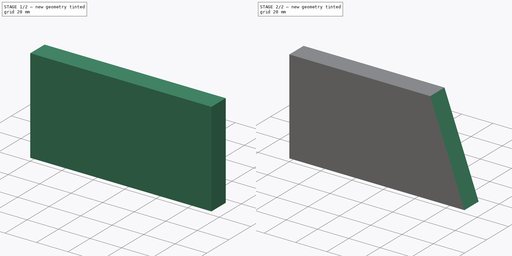
[diagram: build sequence overview — one tinted view per stage of 2, left to right]
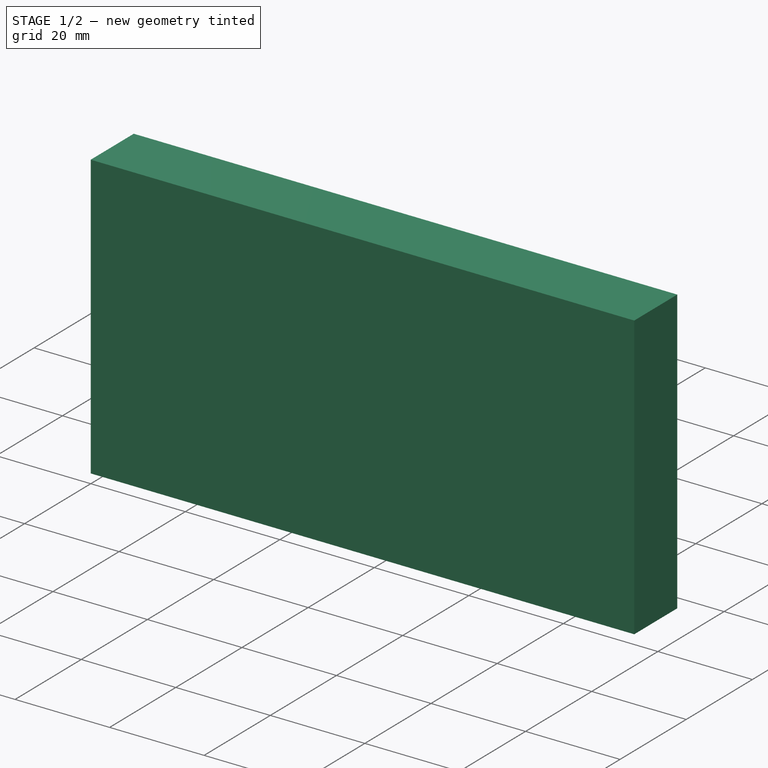
[diagram: stage 1 of 2 — iso view after this stage's code; geometry added in this stage tinted green]
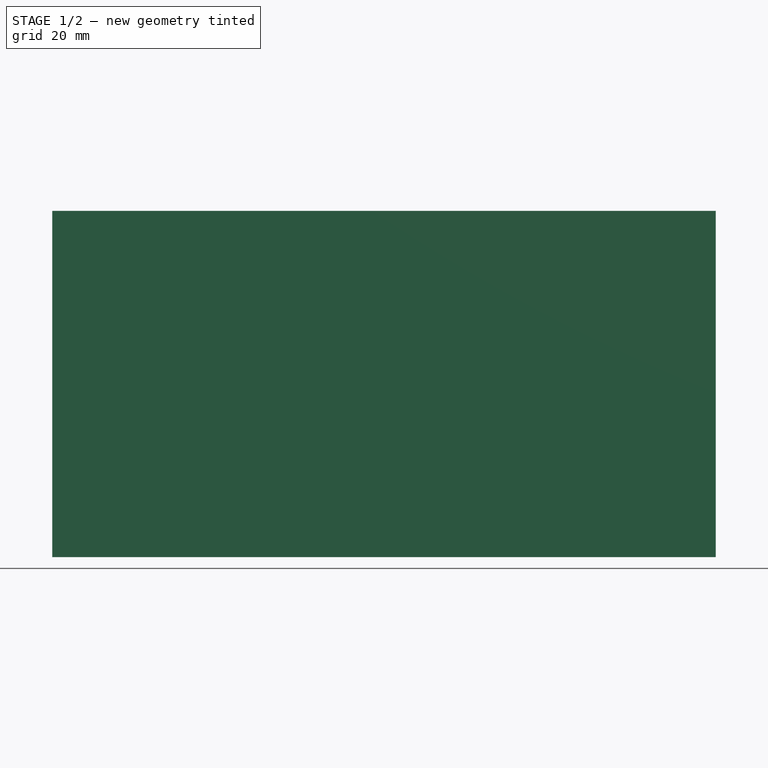
[diagram: stage 1 of 2 — front view after this stage's code; geometry added in this stage tinted green]
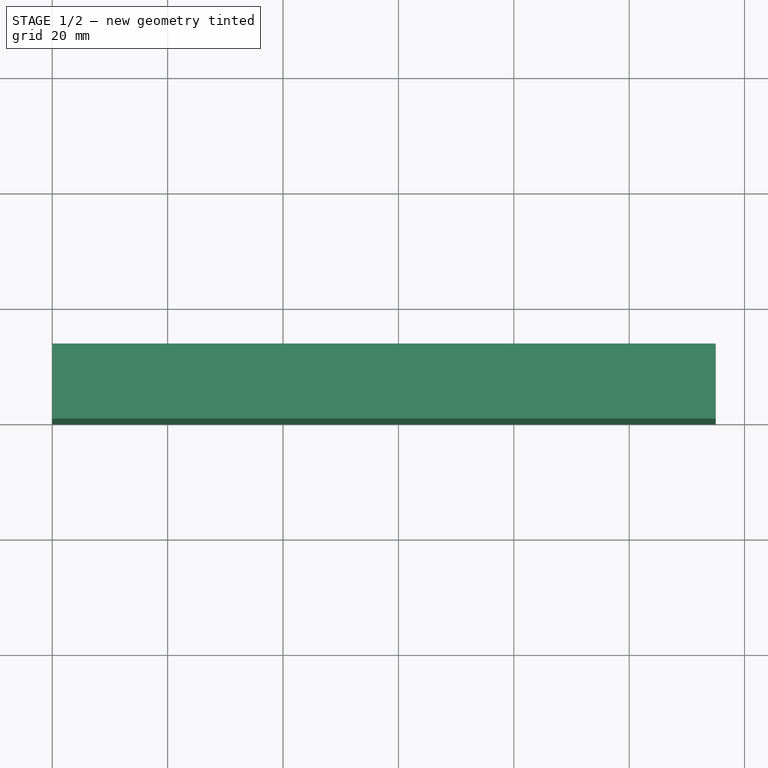
[diagram: stage 1 of 2 — top view after this stage's code; geometry added in this stage tinted green]
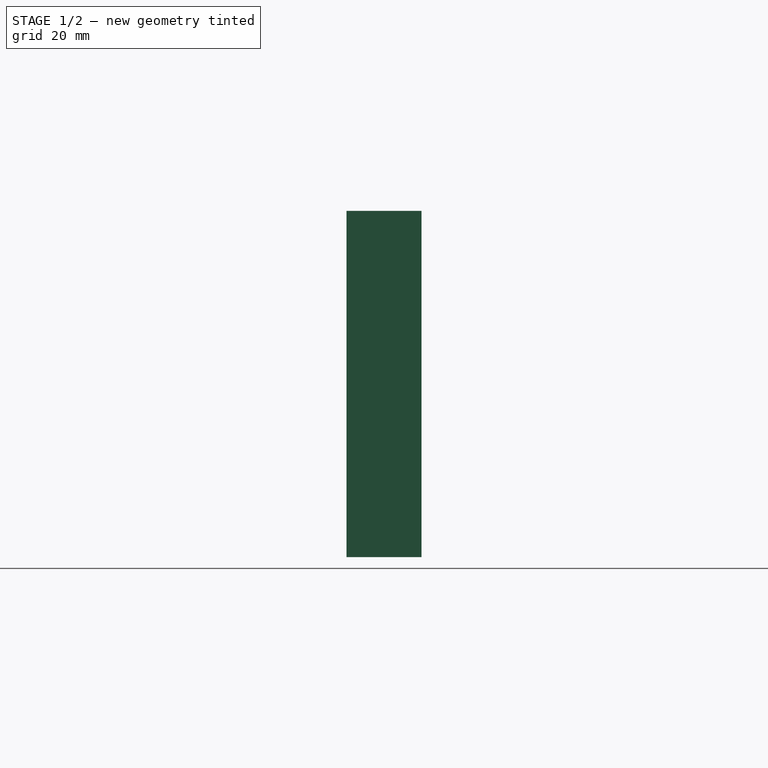
[diagram: stage 1 of 2 — right view after this stage's code; geometry added in this stage tinted green]
FCSTD DOCUMENT  (FreeCAD 0.20R29177 (Git))
Label: 1100_Clading_Marquee_Pseudo
License: All rights reserved
LicenseURL: http://en.wikipedia.org/wiki/All_rights_reserved
objects: Sketcher::SketchObject×2, PartDesign::Pad×1, Spreadsheet::Sheet×1, PartDesign::Pocket×1, PartDesign::Body×1
note: 7 computed .brp shape members not serialized (recipe doc carries the construction recipe); baked Part::Feature solids carry a one-line shape summary decoded from their .brp

FEATURE [Sketcher::SketchObject] Sketch  label="SideWall"
  FullyConstrained = true
  MapMode = 5
  Placement = pos=(0,0,0) rot=(1,0,0;1.5708rad)
  Support = -> [XZ_Plane]
  expr: .Constraints.z_0 = <<xls>>.z_0
  expr: Constraints[10] = <<xls>>.X0
  sketch-geometry (4):
    g0: LineSegment StartX=115 StartY=0 StartZ=0 EndX=0 EndY=0 EndZ=0
    g1: LineSegment StartX=0 StartY=0 StartZ=0 EndX=0 EndY=60 EndZ=0
    g2: LineSegment StartX=0 StartY=60 StartZ=0 EndX=115 EndY=60 EndZ=0
    g3: LineSegment StartX=115 StartY=60 StartZ=0 EndX=115 EndY=0 EndZ=0
  constraints (11):
    c: Coincident(g0,g-1)
    c: Horizontal(g0)
    c: Coincident(g1,g-1)
    c: Vertical(g1)
    c: Coincident(g2,g1)
    c: Vertical(g3)
    c: Coincident(g0,g3)
    c: Perpendicular(g1,g2)
    c: DistanceY(g1,g1) = 60  'z_0'
    c: Coincident(g3,g2)
    c: DistanceX(g2,g2) = 115
FEATURE [PartDesign::Pad] Pad
  AllowMultiFace = false
  Direction = (0,-1,-1.035e-13)
  Length = 13
  Length2 = 13
  Placement = pos=(0,0,0) rot=(1,0,0;1.5708rad)
  Profile = -> Sketch
  Reversed = true
  Type = 0
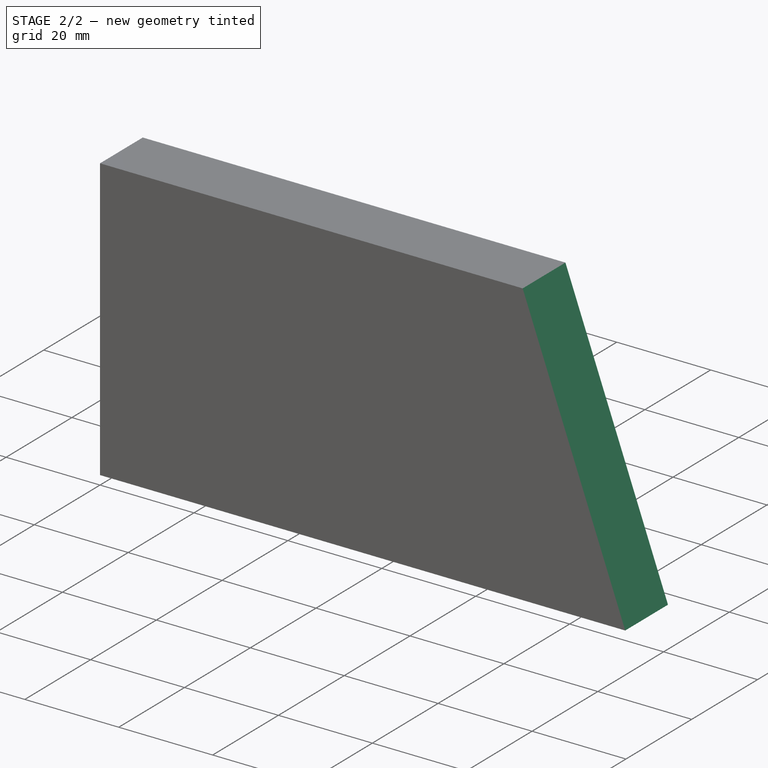
[diagram: stage 2 of 2 — iso view after this stage's code; geometry added in this stage tinted green]
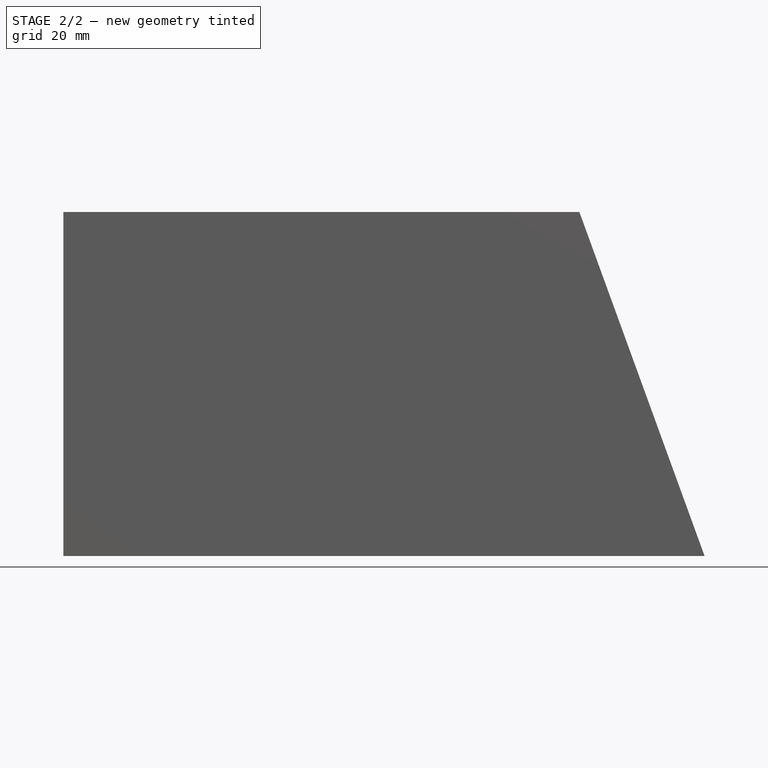
[diagram: stage 2 of 2 — front view after this stage's code; geometry added in this stage tinted green]
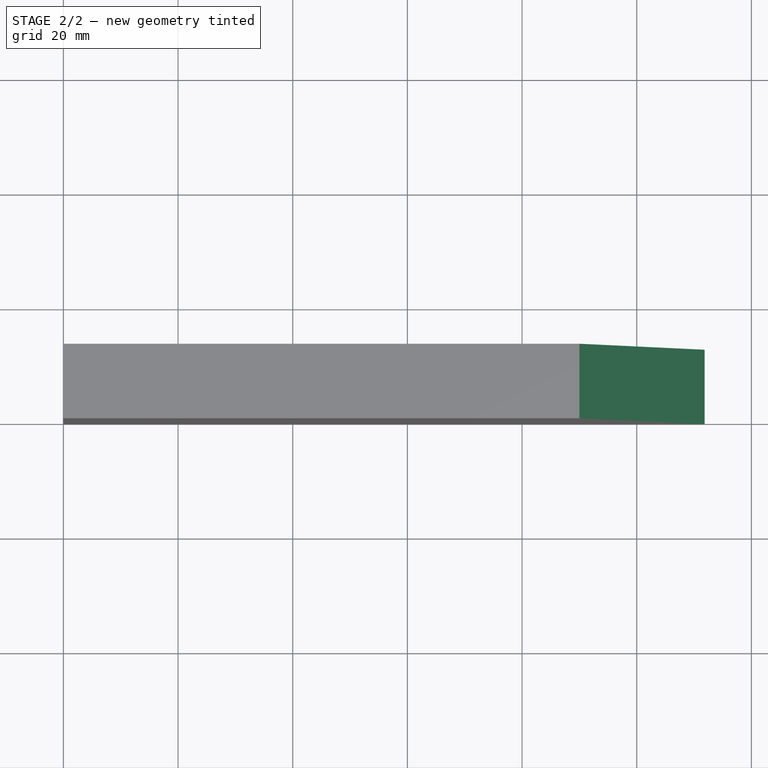
[diagram: stage 2 of 2 — top view after this stage's code; geometry added in this stage tinted green]
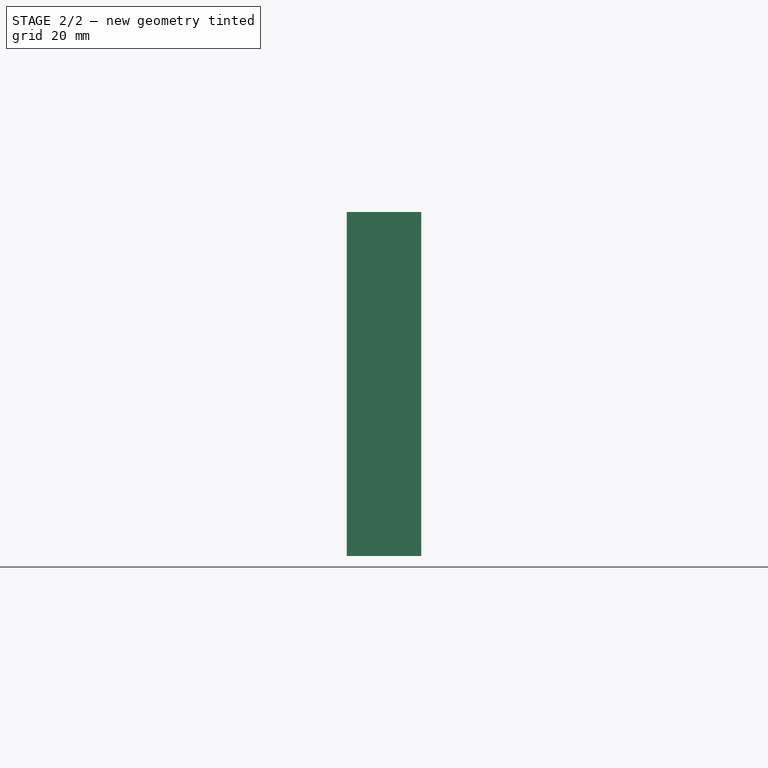
[diagram: stage 2 of 2 — right view after this stage's code; geometry added in this stage tinted green]
FEATURE [Spreadsheet::Sheet] Spreadsheet  label="xls"
  cells = C2=INHERITED DIMENSIONS; C3=Thickness; D3=kbf_t_0; E3=16; F3=mm; C5=CLADING ROOF; C6=thickness of board; D6=t; E6(nt)=14; F6=mm; C7=Depth of board; D7=X0; E7(X0)=115; F7=mm; C8=Height of board; D8=Z0; E8(z_0)=60; F8=mm
FEATURE [Sketcher::SketchObject] Sketch001
  ExternalGeometry = -> [Pad]
  FullyConstrained = true
  MapMode = 5
  Placement = pos=(0,0,0) rot=(1,0,0;1.5708rad)
  Support = -> [XZ_Plane]
  sketch-geometry (4):
    g0: LineSegment StartX=111.838 StartY=0 StartZ=0 EndX=115 EndY=0 EndZ=0
    g1: LineSegment StartX=115 StartY=60 StartZ=0 EndX=115 EndY=0 EndZ=0
    g2: LineSegment StartX=90 StartY=60 StartZ=0 EndX=111.838 EndY=0 EndZ=0
    g3: LineSegment StartX=90 StartY=60 StartZ=0 EndX=115 EndY=60 EndZ=0
  constraints (10):
    c: PointOnObject(g0,g-1)
    c: Coincident(g0,g-3)
    c: Coincident(g1,g-3)
    c: Coincident(g1,g0)
    c: Coincident(g2,g0)
    c: Coincident(g3,g2)
    c: Coincident(g3,g1)
    c: Horizontal(g3)
    c: Angle(g2,g3) = 1.22173
    c: DistanceX(g3,g3) = 25
FEATURE [PartDesign::Pocket] Pocket
  BaseFeature = -> Pad
  Direction = (0,1,1.035e-13)
  Length = 5
  Length2 = 100
  Placement = pos=(0,0,0) rot=(1,0,0;1.5708rad)
  Profile = -> Sketch001
  Type = 1
FEATURE [PartDesign::Body] Body
  Group = -> [Sketch,Pad,Sketch001,Pocket]
  Origin = -> Origin
  Tip = -> Pocket
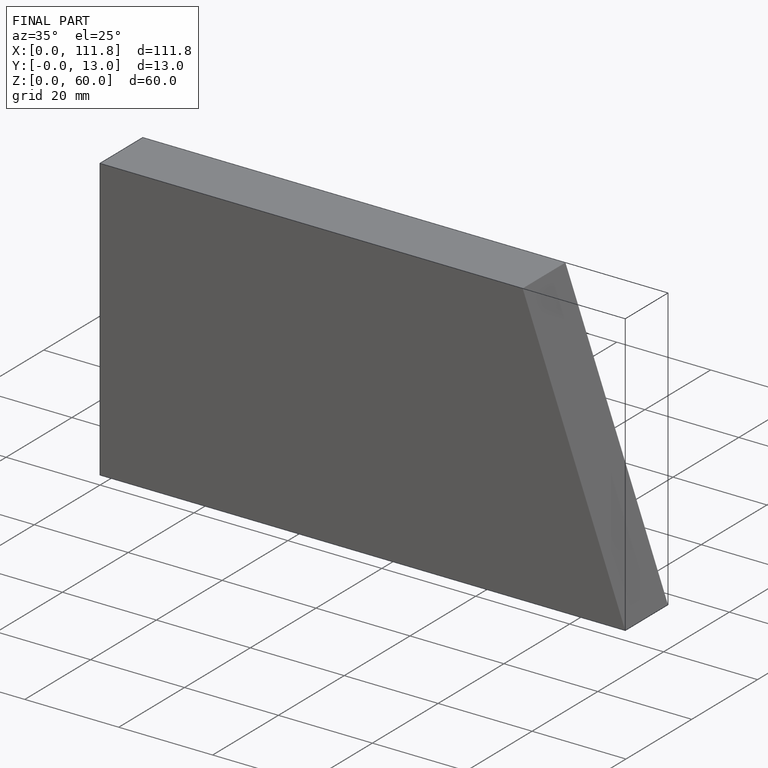
[diagram: finished part — iso view with bounding-box wireframe]
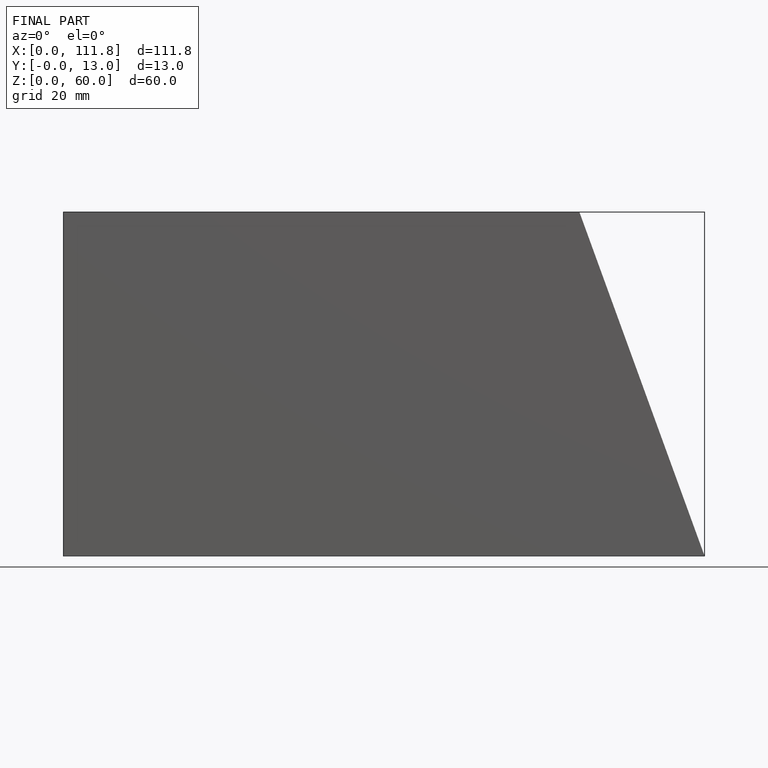
[diagram: finished part — front view with bounding-box wireframe]
